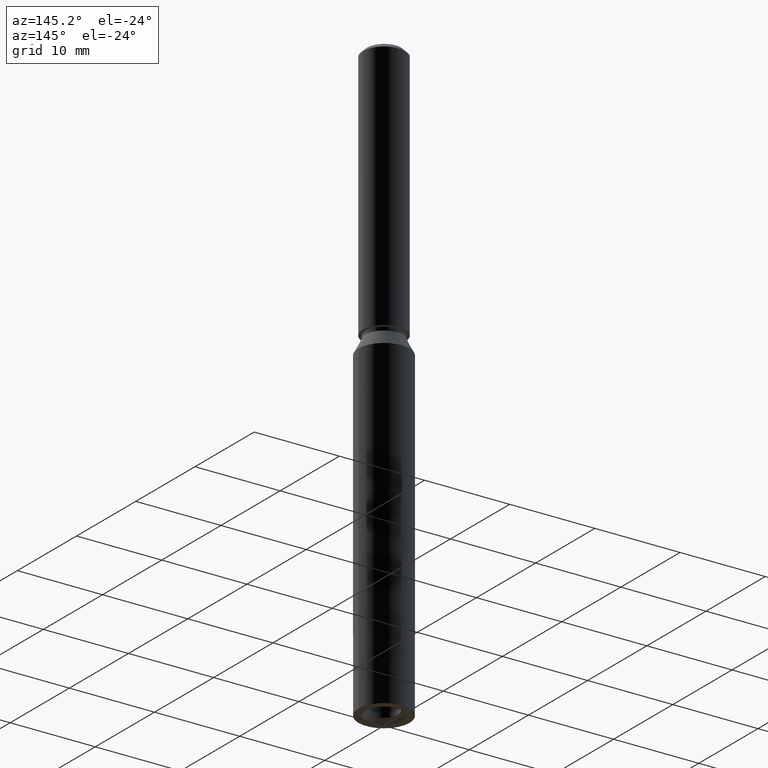
[diagram: clean part render]
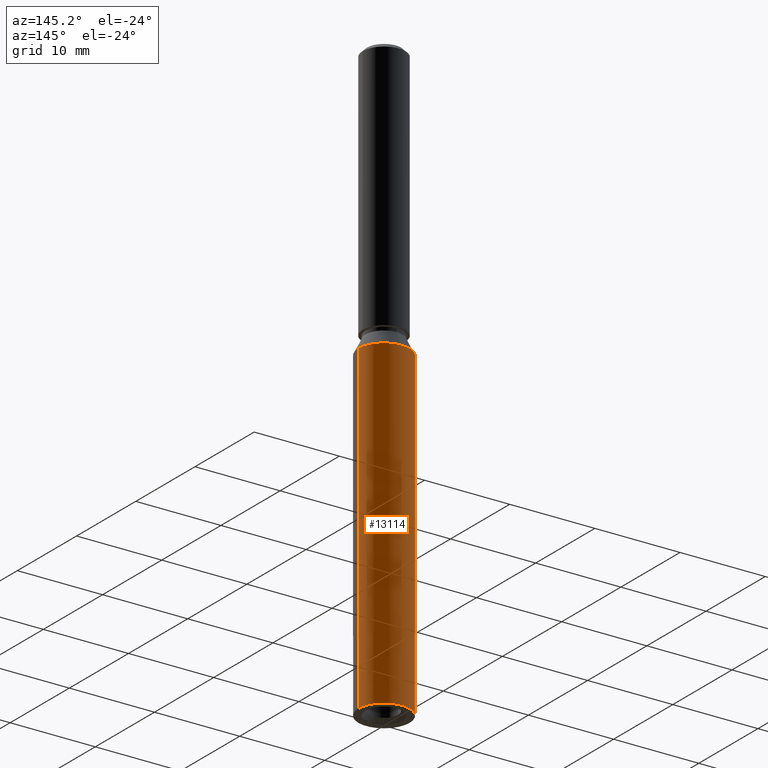
[diagram: same view with one face highlighted and labeled with its STEP entity id]
A machine part, auxiliary view. The second image highlights one B-rep face of the part: STEP entity #13114.
In plain terms, the highlighted cylindrical surface (edge-blend (fillet) strip) has radius 3 mm, axis along (-0, -0, -1).
Its self-contained STEP definition (entity closure, byte-faithful):
#480 = EDGE_LOOP ( 'NONE', ( #12741, #14036, #8292, #9671, #14537 ) ) ;
#815 = VERTEX_POINT ( 'NONE', #3379 ) ;
#954 = DIRECTION ( 'NONE',  ( 0.0000000000000000000, 0.0000000000000000000, 1.000000000000000000 ) ) ;
#1196 = AXIS2_PLACEMENT_3D ( 'NONE', #13372, #954, #11378 ) ;
#1273 = DIRECTION ( 'NONE',  ( -0.0000000000000000000, -0.0000000000000000000, -1.000000000000000000 ) ) ;
#1458 = CARTESIAN_POINT ( 'NONE',  ( 0.0000000000000000000, 3.000000000000005800, 38.00000000000000000 ) ) ;
#1935 = CIRCLE ( 'NONE', #7573, 3.000000000000005800 ) ;
#2650 = CARTESIAN_POINT ( 'NONE',  ( 0.0000000000000000000, -7.477419753763976000E-017, 38.00000000000000000 ) ) ;
#3295 = LINE ( 'NONE', #13062, #13376 ) ;
#3379 = CARTESIAN_POINT ( 'NONE',  ( -3.000000000000000400, 0.0000000000000000000, 0.0000000000000000000 ) ) ;
#3470 = EDGE_CURVE ( 'NONE', #5021, #5867, #14491, .T. ) ;
#4022 = EDGE_CURVE ( 'NONE', #10974, #5021, #1935, .T. ) ;
#4122 = DIRECTION ( 'NONE',  ( -0.0000000000000000000, -0.0000000000000000000, -1.000000000000000000 ) ) ;
#4142 = CARTESIAN_POINT ( 'NONE',  ( 3.000000000000005800, 3.673940397442067800E-016, 38.00000000000000000 ) ) ;
#4549 = VECTOR ( 'NONE', #13970, 1000.000000000000000 ) ;
#4915 = DIRECTION ( 'NONE',  ( 0.0000000000000000000, 1.000000000000000000, 0.0000000000000000000 ) ) ;
#5021 = VERTEX_POINT ( 'NONE', #1458 ) ;
#5163 = EDGE_CURVE ( 'NONE', #10974, #815, #14463, .T. ) ;
#5295 = CARTESIAN_POINT ( 'NONE',  ( 0.0000000000000000000, -7.477419753763976000E-017, 38.00000000000000000 ) ) ;
#5867 = VERTEX_POINT ( 'NONE', #4142 ) ;
#6124 = DIRECTION ( 'NONE',  ( -0.0000000000000000000, 1.967742040464204400E-018, -1.000000000000000000 ) ) ;
#6507 = DIRECTION ( 'NONE',  ( -0.0000000000000000000, 1.967742040464204400E-018, -1.000000000000000000 ) ) ;
#6884 = CARTESIAN_POINT ( 'NONE',  ( 0.0000000000000000000, 0.0000000000000000000, 40.00000000000000000 ) ) ;
#7264 = AXIS2_PLACEMENT_3D ( 'NONE', #5295, #6507, #8802 ) ;
#7573 = AXIS2_PLACEMENT_3D ( 'NONE', #2650, #6124, #4915 ) ;
#7721 = EDGE_CURVE ( 'NONE', #13567, #815, #8766, .T. ) ;
#8292 = ORIENTED_EDGE ( 'NONE', *, *, #14520, .T. ) ;
#8481 = CARTESIAN_POINT ( 'NONE',  ( -3.000000000000000400, 0.0000000000000000000, 40.00000000000000000 ) ) ;
#8526 = AXIS2_PLACEMENT_3D ( 'NONE', #6884, #1273, #12644 ) ;
#8731 = CARTESIAN_POINT ( 'NONE',  ( 3.000000000000000400, 3.673940397442060400E-016, 0.0000000000000000000 ) ) ;
#8766 = CIRCLE ( 'NONE', #1196, 3.000000000000000400 ) ;
#8802 = DIRECTION ( 'NONE',  ( 0.0000000000000000000, 1.000000000000000000, 0.0000000000000000000 ) ) ;
#9671 = ORIENTED_EDGE ( 'NONE', *, *, #7721, .T. ) ;
#9902 = CYLINDRICAL_SURFACE ( 'NONE', #8526, 3.000000000000000400 ) ;
#10974 = VERTEX_POINT ( 'NONE', #14635 ) ;
#11368 = FACE_OUTER_BOUND ( 'NONE', #480, .T. ) ;
#11378 = DIRECTION ( 'NONE',  ( 1.000000000000000000, 0.0000000000000000000, 0.0000000000000000000 ) ) ;
#12644 = DIRECTION ( 'NONE',  ( -1.000000000000000000, 0.0000000000000000000, 0.0000000000000000000 ) ) ;
#12741 = ORIENTED_EDGE ( 'NONE', *, *, #4022, .T. ) ;
#13062 = CARTESIAN_POINT ( 'NONE',  ( 3.000000000000000400, 3.673940397442060400E-016, 40.00000000000000000 ) ) ;
#13114 = ADVANCED_FACE ( 'NONE', ( #11368 ), #9902, .T. ) ;
#13372 = CARTESIAN_POINT ( 'NONE',  ( 0.0000000000000000000, 0.0000000000000000000, 0.0000000000000000000 ) ) ;
#13376 = VECTOR ( 'NONE', #4122, 1000.000000000000000 ) ;
#13567 = VERTEX_POINT ( 'NONE', #8731 ) ;
#13970 = DIRECTION ( 'NONE',  ( -0.0000000000000000000, -0.0000000000000000000, -1.000000000000000000 ) ) ;
#14036 = ORIENTED_EDGE ( 'NONE', *, *, #3470, .T. ) ;
#14463 = LINE ( 'NONE', #8481, #4549 ) ;
#14491 = CIRCLE ( 'NONE', #7264, 3.000000000000005800 ) ;
#14520 = EDGE_CURVE ( 'NONE', #5867, #13567, #3295, .T. ) ;
#14537 = ORIENTED_EDGE ( 'NONE', *, *, #5163, .F. ) ;
#14635 = CARTESIAN_POINT ( 'NONE',  ( -3.000000000000005800, 1.324076836766224600E-031, 38.00000000000000000 ) ) ;